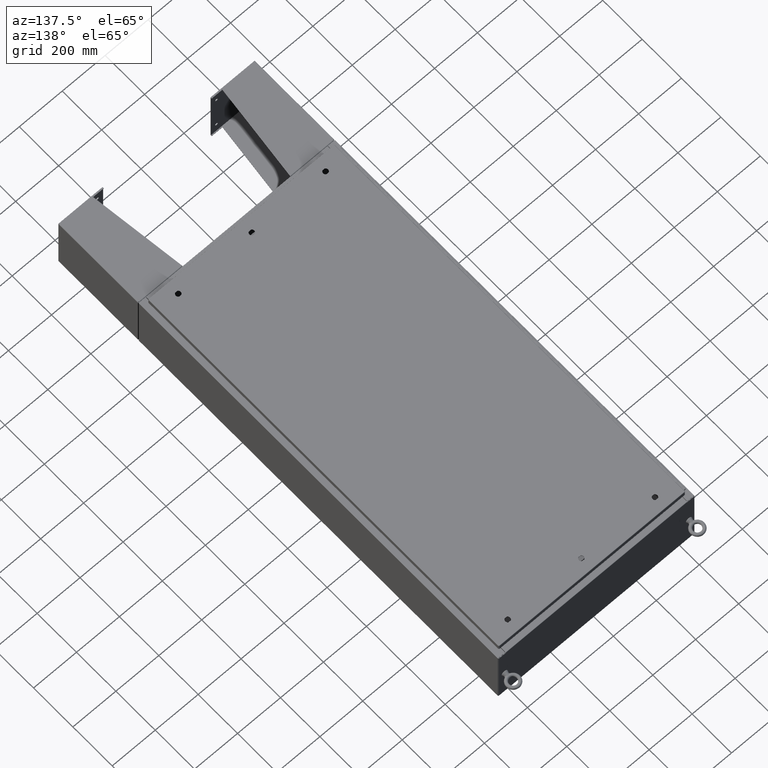
[diagram: clean part render]
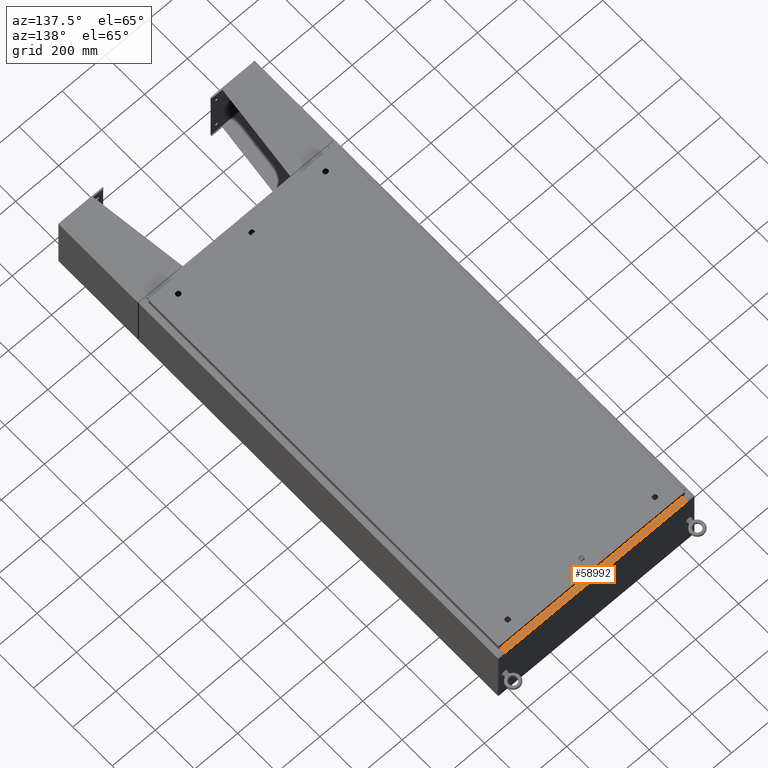
[diagram: same view with one face highlighted and labeled with its STEP entity id]
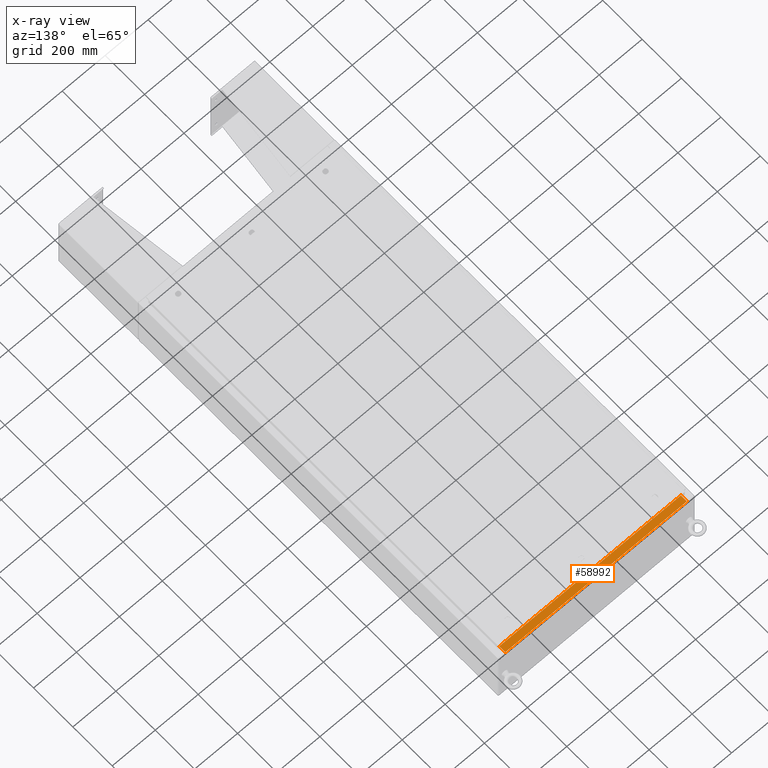
[diagram: x-ray of the same camera — body ghosted, the highlighted face saturated]
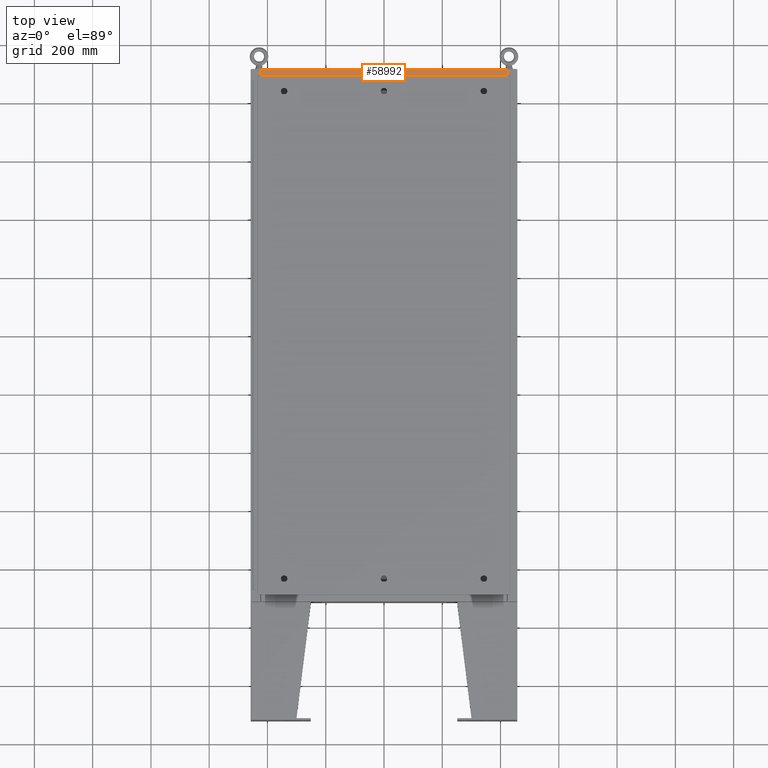
[diagram: same view with one face highlighted and labeled with its STEP entity id]
A machine part, auxiliary view. The second image highlights one B-rep face of the part: STEP entity #58992.
The next image is the same camera in x-ray: the body ghosted, the highlighted face saturated — about 0% of this face is hidden behind the body in this view.
A second angle (top view) of the same face is appended — the face is thin or edge-on in the first view.
In plain terms, the highlighted planar face has unit normal (0, 0, 1).
Its self-contained STEP definition (entity closure, byte-faithful):
#468 = VECTOR ( 'NONE', #45368, 39.37007874015748100 ) ;
#1857 = CARTESIAN_POINT ( 'NONE',  ( -5.156971724347648400E-018, -0.08769999999999972300, 5.999999999999999100 ) ) ;
#5070 = DIRECTION ( 'NONE',  ( 0.0000000000000000000, -1.000000000000000000, 2.674785894579892700E-015 ) ) ;
#7338 = VECTOR ( 'NONE', #62109, 39.37007874015748100 ) ;
#8101 = EDGE_CURVE ( 'NONE', #43807, #20542, #63101, .T. ) ;
#9016 = LINE ( 'NONE', #42860, #7338 ) ;
#10764 = EDGE_CURVE ( 'NONE', #65719, #43807, #9016, .T. ) ;
#12011 = AXIS2_PLACEMENT_3D ( 'NONE', #26764, #37621, #5070 ) ;
#12853 = EDGE_LOOP ( 'NONE', ( #17999, #25309, #68577, #63637 ) ) ;
#14950 = LINE ( 'NONE', #1857, #468 ) ;
#16954 = CARTESIAN_POINT ( 'NONE',  ( -16.63719999999999600, -0.07469999999999973900, 5.999999999999999100 ) ) ;
#17999 = ORIENTED_EDGE ( 'NONE', *, *, #37998, .F. ) ;
#20542 = VERTEX_POINT ( 'NONE', #50769 ) ;
#21042 = PLANE ( 'NONE',  #12011 ) ;
#25309 = ORIENTED_EDGE ( 'NONE', *, *, #8101, .F. ) ;
#26764 = CARTESIAN_POINT ( 'NONE',  ( -2.276882898771239300E-018, 1.610972251716581800E-014, 5.999999999999999100 ) ) ;
#37621 = DIRECTION ( 'NONE',  ( 0.0000000000000000000, 2.674785894579892700E-015, 1.000000000000000000 ) ) ;
#37998 = EDGE_CURVE ( 'NONE', #20542, #51889, #43552, .T. ) ;
#41862 = VECTOR ( 'NONE', #65947, 39.37007874015748100 ) ;
#42860 = CARTESIAN_POINT ( 'NONE',  ( 16.63720000000000400, -1.300299999999999800, 6.000000000000003600 ) ) ;
#43552 = LINE ( 'NONE', #16954, #41862 ) ;
#43807 = VERTEX_POINT ( 'NONE', #63486 ) ;
#44309 = EDGE_CURVE ( 'NONE', #65719, #51889, #14950, .T. ) ;
#45368 = DIRECTION ( 'NONE',  ( -1.000000000000000000, 3.284023746380717400E-017, -8.784060394284559800E-032 ) ) ;
#48417 = VECTOR ( 'NONE', #56367, 39.37007874015748100 ) ;
#50769 = CARTESIAN_POINT ( 'NONE',  ( -16.63719999999999600, -1.287299999999998600, 6.000000000000002700 ) ) ;
#51889 = VERTEX_POINT ( 'NONE', #55097 ) ;
#52854 = CARTESIAN_POINT ( 'NONE',  ( 16.63720000000000400, -0.08769999999999948700, 5.999999999999999100 ) ) ;
#55097 = CARTESIAN_POINT ( 'NONE',  ( -16.63719999999999600, -0.08769999999999972300, 5.999999999999999100 ) ) ;
#56367 = DIRECTION ( 'NONE',  ( -1.000000000000000000, 0.0000000000000000000, 0.0000000000000000000 ) ) ;
#58759 = CARTESIAN_POINT ( 'NONE',  ( 16.63720000000000400, -1.287299999999999400, 6.000000000000001800 ) ) ;
#58992 = ADVANCED_FACE ( 'NONE', ( #66577 ), #21042, .T. ) ;
#62109 = DIRECTION ( 'NONE',  ( -0.0000000000000000000, -1.000000000000000000, 3.566381192773190000E-015 ) ) ;
#63101 = LINE ( 'NONE', #58759, #48417 ) ;
#63486 = CARTESIAN_POINT ( 'NONE',  ( 16.63720000000000400, -1.287299999999999400, 6.000000000000003600 ) ) ;
#63637 = ORIENTED_EDGE ( 'NONE', *, *, #44309, .T. ) ;
#65719 = VERTEX_POINT ( 'NONE', #52854 ) ;
#65947 = DIRECTION ( 'NONE',  ( -0.0000000000000000000, 1.000000000000000000, -2.674785894579892700E-015 ) ) ;
#66577 = FACE_OUTER_BOUND ( 'NONE', #12853, .T. ) ;
#68577 = ORIENTED_EDGE ( 'NONE', *, *, #10764, .F. ) ;